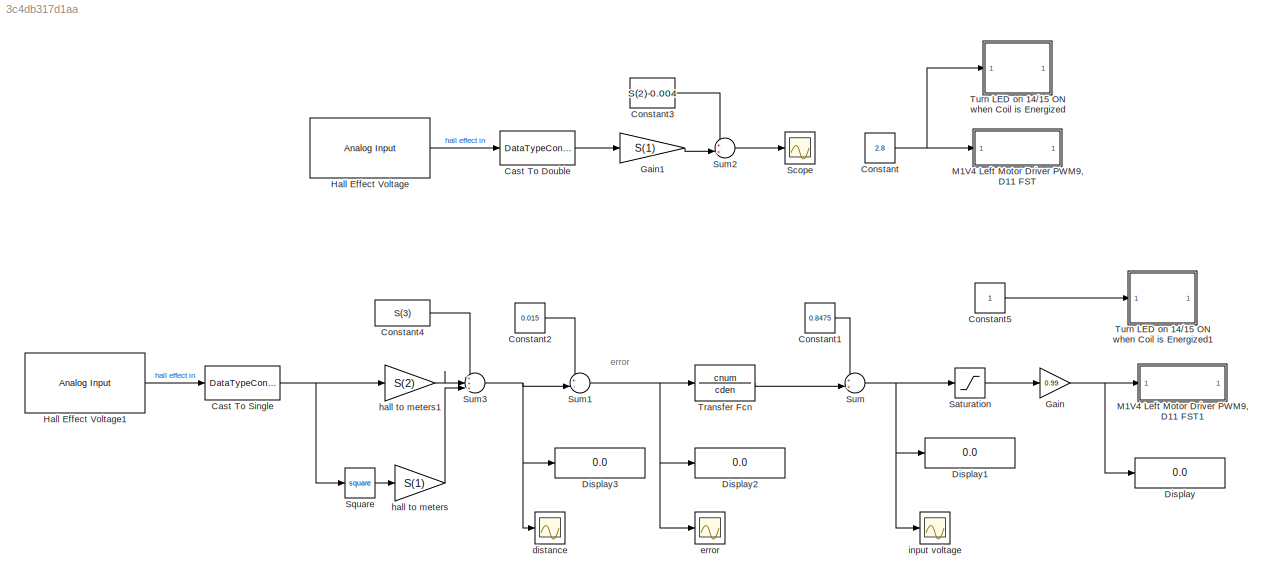
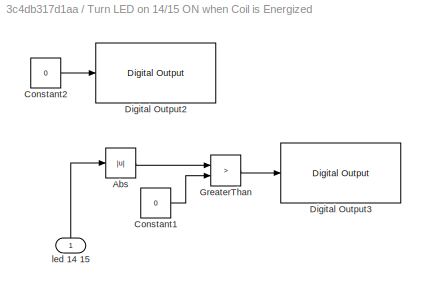
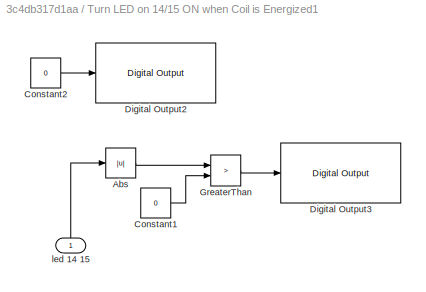
MODEL slx_3c4db317d1aa
KIND model
CONFIG AbsTol = auto
CONFIG EnableMultiTasking = on
CONFIG FixedStep = T
CONFIG MaxStep = auto
CONFIG MinStep = auto
CONFIG RelTol = 1e-3
CONFIG SampleTimeConstraint = Unconstrained
CONFIG SolverName = ode5
CONFIG StartTime = 0.0
CONFIG StopTime = S
BLOCK [DataTypeConversion] Cast To Double
  Commented = on
  OutDataTypeStr = double
  RndMeth = Floor
  SaturateOnIntegerOverflow = off
BLOCK [DataTypeConversion] Cast To Single
  OutDataTypeStr = single
  RndMeth = Floor
  SaturateOnIntegerOverflow = off
BLOCK [Constant] Constant
  Commented = on
  Value = 2.8
BLOCK [Constant] Constant1
  Value = 0.8475
BLOCK [Constant] Constant2
  Value = 0.015
BLOCK [Constant] Constant3
  Commented = on
  Value = S(2)-0.004
BLOCK [Constant] Constant4
  Value = S(3)
BLOCK [Constant] Constant5
BLOCK [Display] Display
  Decimation = 1
BLOCK [Display] Display1
  Decimation = 1
BLOCK [Display] Display2
  Decimation = 1
BLOCK [Display] Display3
  Decimation = 1
BLOCK [Gain] Gain
  Gain = 0.99
BLOCK [Gain] Gain1
  Commented = on
  Gain = S(1)
BLOCK [Reference] Hall Effect Voltage  REF=arduinolib/Analog Input
  Commented = on
  SourceBlock = arduinolib/Analog Input
  SourceType = Arduino Analog Input
BLOCK [Reference] Hall Effect Voltage1  REF=arduinolib/Analog Input
  SourceBlock = arduinolib/Analog Input
  SourceType = Arduino Analog Input
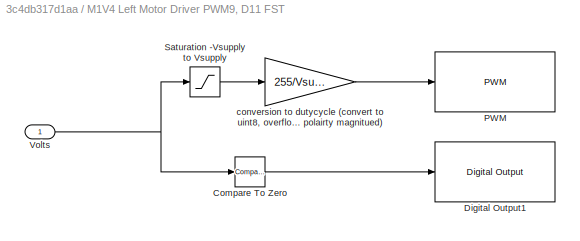
BLOCK [SubSystem] M1V4 Left Motor Driver PWM9, D11 FST
  Commented = on
BLOCK [Reference] M1V4 Left Motor Driver PWM9, D11 FST/Compare To Zero  REF=simulink/Logic and Bit
Operations/Compare
To Zero
  SourceBlock = simulink/Logic and Bit\nOperations/Compare\nTo Zero
  SourceType = Compare To Zero
BLOCK [Reference] M1V4 Left Motor Driver PWM9, D11 FST/Digital Output1  REF=arduinolib/Digital Output
  SourceBlock = arduinolib/Digital Output
  SourceType = Arduino Digital Output
BLOCK [Reference] M1V4 Left Motor Driver PWM9, D11 FST/PWM  REF=arduinolib/PWM
  SourceBlock = arduinolib/PWM
  SourceType = Arduino PWM
BLOCK [Saturate] M1V4 Left Motor Driver PWM9, D11 FST/Saturation -Vsupply to Vsupply
  LowerLimit = -Vsupply
  OutDataTypeStr = single
  UpperLimit = Vsupply
BLOCK [Inport] M1V4 Left Motor Driver PWM9, D11 FST/Volts
BLOCK [Gain] M1V4 Left Motor Driver PWM9, D11 FST/conversion to dutycycle (convert to uint8, overflow will provide reverse polairty magnitued)
  Gain = 255/Vsupply
  OutDataTypeStr = uint8
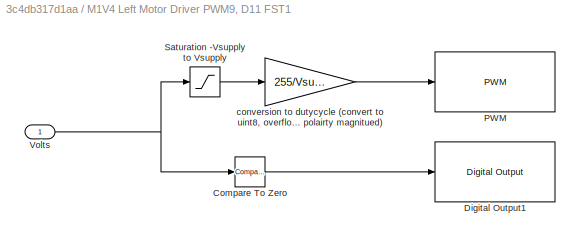
BLOCK [SubSystem] M1V4 Left Motor Driver PWM9, D11 FST1
BLOCK [Reference] M1V4 Left Motor Driver PWM9, D11 FST1/Compare To Zero  REF=simulink/Logic and Bit
Operations/Compare
To Zero
  SourceBlock = simulink/Logic and Bit\nOperations/Compare\nTo Zero
  SourceType = Compare To Zero
BLOCK [Reference] M1V4 Left Motor Driver PWM9, D11 FST1/Digital Output1  REF=arduinolib/Digital Output
  SourceBlock = arduinolib/Digital Output
  SourceType = Arduino Digital Output
BLOCK [Reference] M1V4 Left Motor Driver PWM9, D11 FST1/PWM  REF=arduinolib/PWM
  SourceBlock = arduinolib/PWM
  SourceType = Arduino PWM
BLOCK [Saturate] M1V4 Left Motor Driver PWM9, D11 FST1/Saturation -Vsupply to Vsupply
  LowerLimit = -Vsupply
  OutDataTypeStr = single
  UpperLimit = Vsupply
BLOCK [Inport] M1V4 Left Motor Driver PWM9, D11 FST1/Volts
BLOCK [Gain] M1V4 Left Motor Driver PWM9, D11 FST1/conversion to dutycycle (convert to uint8, overflow will provide reverse polairty magnitued)
  Gain = 255/Vsupply
  OutDataTypeStr = uint8
BLOCK [Saturate] Saturation
  LowerLimit = -3.25
  UpperLimit = 3.25
BLOCK [Scope] Scope
  Commented = on
  Floating = off
  NumInputPorts = 1
  ScopeSpecificationString = Simulink.scopes.TimeScopeBlockCfg('CurrentConfiguration', extmgr.ConfigurationSet(extmgr.Configuration('Core','General UI',true),extmgr.Configuration('Core','Source UI',true),extmgr.Configuration('Sources','WiredSimulink',true),extmgr.Configuration('Visuals','Time Domain',true,'SerializedDisplays',{struct('MinYLimReal','-0.004091','MaxYLimReal','-0.003996','YLabelReal','','MinYLimMag','0.000000','...<+1524ch>
BLOCK [Math] Square
  Operator = square
BLOCK [Sum] Sum
  Inputs = ++|
BLOCK [Sum] Sum1
  Inputs = +-|
BLOCK [Sum] Sum2
  Commented = on
  Inputs = ++|
BLOCK [Sum] Sum3
  Inputs = +++|
BLOCK [TransferFcn] Transfer Fcn
  Denominator = cden
  Numerator = cnum
BLOCK [SubSystem] Turn LED on 14//15 ON when Coil is Energized
  Commented = on
BLOCK [Abs] Turn LED on 14//15 ON when Coil is Energized/Abs
  SaturateOnIntegerOverflow = off
BLOCK [Constant] Turn LED on 14//15 ON when Coil is Energized/Constant1
  OutDataTypeStr = boolean
  SampleTime = 0
  Value = 0
BLOCK [Constant] Turn LED on 14//15 ON when Coil is Energized/Constant2
  OutDataTypeStr = boolean
  SampleTime = 0
  Value = 0
BLOCK [Reference] Turn LED on 14//15 ON when Coil is Energized/Digital Output2  REF=arduinolib/Digital Output
  SourceBlock = arduinolib/Digital Output
  SourceType = Arduino Digital Output
BLOCK [Reference] Turn LED on 14//15 ON when Coil is Energized/Digital Output3  REF=arduinolib/Digital Output
  SourceBlock = arduinolib/Digital Output
  SourceType = Arduino Digital Output
BLOCK [RelationalOperator] Turn LED on 14//15 ON when Coil is Energized/GreaterThan
  InputSameDT = off
  Operator = >
  OutDataTypeStr = boolean
  RndMeth = Simplest
BLOCK [Inport] Turn LED on 14//15 ON when Coil is Energized/led 14 15
  NameLocation = right
BLOCK [SubSystem] Turn LED on 14//15 ON when Coil is Energized1
BLOCK [Abs] Turn LED on 14//15 ON when Coil is Energized1/Abs
  SaturateOnIntegerOverflow = off
BLOCK [Constant] Turn LED on 14//15 ON when Coil is Energized1/Constant1
  OutDataTypeStr = boolean
  SampleTime = 0
  Value = 0
BLOCK [Constant] Turn LED on 14//15 ON when Coil is Energized1/Constant2
  OutDataTypeStr = boolean
  SampleTime = 0
  Value = 0
BLOCK [Reference] Turn LED on 14//15 ON when Coil is Energized1/Digital Output2  REF=arduinolib/Digital Output
  SourceBlock = arduinolib/Digital Output
  SourceType = Arduino Digital Output
BLOCK [Reference] Turn LED on 14//15 ON when Coil is Energized1/Digital Output3  REF=arduinolib/Digital Output
  SourceBlock = arduinolib/Digital Output
  SourceType = Arduino Digital Output
BLOCK [RelationalOperator] Turn LED on 14//15 ON when Coil is Energized1/GreaterThan
  InputSameDT = off
  Operator = >
  OutDataTypeStr = boolean
  RndMeth = Simplest
BLOCK [Inport] Turn LED on 14//15 ON when Coil is Energized1/led 14 15
  NameLocation = right
BLOCK [Scope] distance
  Floating = off
  NumInputPorts = 1
  ScopeSpecificationString = Simulink.scopes.TimeScopeBlockCfg('CurrentConfiguration', extmgr.ConfigurationSet(extmgr.Configuration('Core','General UI',true),extmgr.Configuration('Core','Source UI',true),extmgr.Configuration('Sources','WiredSimulink',true,'DataLoggingVariableName','ScopeData1'),extmgr.Configuration('Visuals','Time Domain',true,'SerializedDisplays',{struct('MinYLimReal','0.04104','MaxYLimReal','0.10385','YLabe...<+1527ch>
BLOCK [Scope] error
  Floating = off
  NumInputPorts = 1
  ScopeSpecificationString = Simulink.scopes.TimeScopeBlockCfg('CurrentConfiguration', extmgr.ConfigurationSet(extmgr.Configuration('Core','General UI',true),extmgr.Configuration('Core','Source UI',true),extmgr.Configuration('Sources','WiredSimulink',true,'DataLoggingVariableName','ScopeData3'),extmgr.Configuration('Visuals','Time Domain',true,'SerializedDisplays',{struct('MinYLimReal','-0.02554','MaxYLimReal','-0.01551','YLa...<+1531ch>
BLOCK [Gain] hall to meters
  Gain = S(1)
BLOCK [Gain] hall to meters1
  Gain = S(2)
BLOCK [Scope] input voltage
  Floating = off
  NumInputPorts = 1
  ScopeSpecificationString = Simulink.scopes.TimeScopeBlockCfg('CurrentConfiguration', extmgr.ConfigurationSet(extmgr.Configuration('Core','General UI',true),extmgr.Configuration('Core','Source UI',true),extmgr.Configuration('Sources','WiredSimulink',true,'DataLoggingVariableName','ScopeData2'),extmgr.Configuration('Visuals','Time Domain',true,'SerializedDisplays',{struct('MinYLimReal','-1155873061732352.00000','MaxYLimReal',...<+1621ch>
ANNOTATION (root): error
LINE Cast To Double:1 -> Gain1:1
NET Cast To Single:1 -> Square:1, hall to meters1:1
LINE Constant1:1 -> Sum:1
LINE Constant2:1 -> Sum1:1
LINE Constant3:1 -> Sum2:1
LINE Constant4:1 -> Sum3:1
LINE Constant5:1 -> Turn LED on 14//15 ON when Coil is Energized1:1
NET Constant:1 -> M1V4 Left Motor Driver PWM9, D11 FST:1, Turn LED on 14//15 ON when Coil is Energized:1
LINE Gain1:1 -> Sum2:2
NET Gain:1 -> Display:1, M1V4 Left Motor Driver PWM9, D11 FST1:1
LINE Hall Effect Voltage1:1 -> Cast To Single:1
LINE Hall Effect Voltage:1 -> Cast To Double:1
LINE M1V4 Left Motor Driver PWM9, D11 FST/Compare To Zero:1 -> M1V4 Left Motor Driver PWM9, D11 FST/Digital Output1:1
LINE M1V4 Left Motor Driver PWM9, D11 FST/Saturation -Vsupply to Vsupply:1 -> M1V4 Left Motor Driver PWM9, D11 FST/conversion to dutycycle (convert to uint8, overflow will provide reverse polairty magnitued):1
NET M1V4 Left Motor Driver PWM9, D11 FST/Volts:1 -> M1V4 Left Motor Driver PWM9, D11 FST/Compare To Zero:1, M1V4 Left Motor Driver PWM9, D11 FST/Saturation -Vsupply to Vsupply:1
LINE M1V4 Left Motor Driver PWM9, D11 FST/conversion to dutycycle (convert to uint8, overflow will provide reverse polairty magnitued):1 -> M1V4 Left Motor Driver PWM9, D11 FST/PWM:1
LINE M1V4 Left Motor Driver PWM9, D11 FST1/Compare To Zero:1 -> M1V4 Left Motor Driver PWM9, D11 FST1/Digital Output1:1
LINE M1V4 Left Motor Driver PWM9, D11 FST1/Saturation -Vsupply to Vsupply:1 -> M1V4 Left Motor Driver PWM9, D11 FST1/conversion to dutycycle (convert to uint8, overflow will provide reverse polairty magnitued):1
NET M1V4 Left Motor Driver PWM9, D11 FST1/Volts:1 -> M1V4 Left Motor Driver PWM9, D11 FST1/Compare To Zero:1, M1V4 Left Motor Driver PWM9, D11 FST1/Saturation -Vsupply to Vsupply:1
LINE M1V4 Left Motor Driver PWM9, D11 FST1/conversion to dutycycle (convert to uint8, overflow will provide reverse polairty magnitued):1 -> M1V4 Left Motor Driver PWM9, D11 FST1/PWM:1
LINE Saturation:1 -> Gain:1
LINE Square:1 -> hall to meters:1
NET Sum1:1 -> Display2:1, Transfer Fcn:1, error:1
LINE Sum2:1 -> Scope:1
NET Sum3:1 -> Display3:1, Sum1:2, distance:1
NET Sum:1 -> Display1:1, Saturation:1, input voltage:1
LINE Transfer Fcn:1 -> Sum:2
LINE Turn LED on 14//15 ON when Coil is Energized/Abs:1 -> Turn LED on 14//15 ON when Coil is Energized/GreaterThan:1
LINE Turn LED on 14//15 ON when Coil is Energized/Constant1:1 -> Turn LED on 14//15 ON when Coil is Energized/GreaterThan:2
LINE Turn LED on 14//15 ON when Coil is Energized/Constant2:1 -> Turn LED on 14//15 ON when Coil is Energized/Digital Output2:1
LINE Turn LED on 14//15 ON when Coil is Energized/GreaterThan:1 -> Turn LED on 14//15 ON when Coil is Energized/Digital Output3:1
LINE Turn LED on 14//15 ON when Coil is Energized/led 14 15:1 -> Turn LED on 14//15 ON when Coil is Energized/Abs:1
LINE Turn LED on 14//15 ON when Coil is Energized1/Abs:1 -> Turn LED on 14//15 ON when Coil is Energized1/GreaterThan:1
LINE Turn LED on 14//15 ON when Coil is Energized1/Constant1:1 -> Turn LED on 14//15 ON when Coil is Energized1/GreaterThan:2
LINE Turn LED on 14//15 ON when Coil is Energized1/Constant2:1 -> Turn LED on 14//15 ON when Coil is Energized1/Digital Output2:1
LINE Turn LED on 14//15 ON when Coil is Energized1/GreaterThan:1 -> Turn LED on 14//15 ON when Coil is Energized1/Digital Output3:1
LINE Turn LED on 14//15 ON when Coil is Energized1/led 14 15:1 -> Turn LED on 14//15 ON when Coil is Energized1/Abs:1
LINE hall to meters1:1 -> Sum3:2
LINE hall to meters:1 -> Sum3:3
note: NET lines group one-source signal fan-out (src -> all destinations, sorted); 1:1 wires keep LINE
